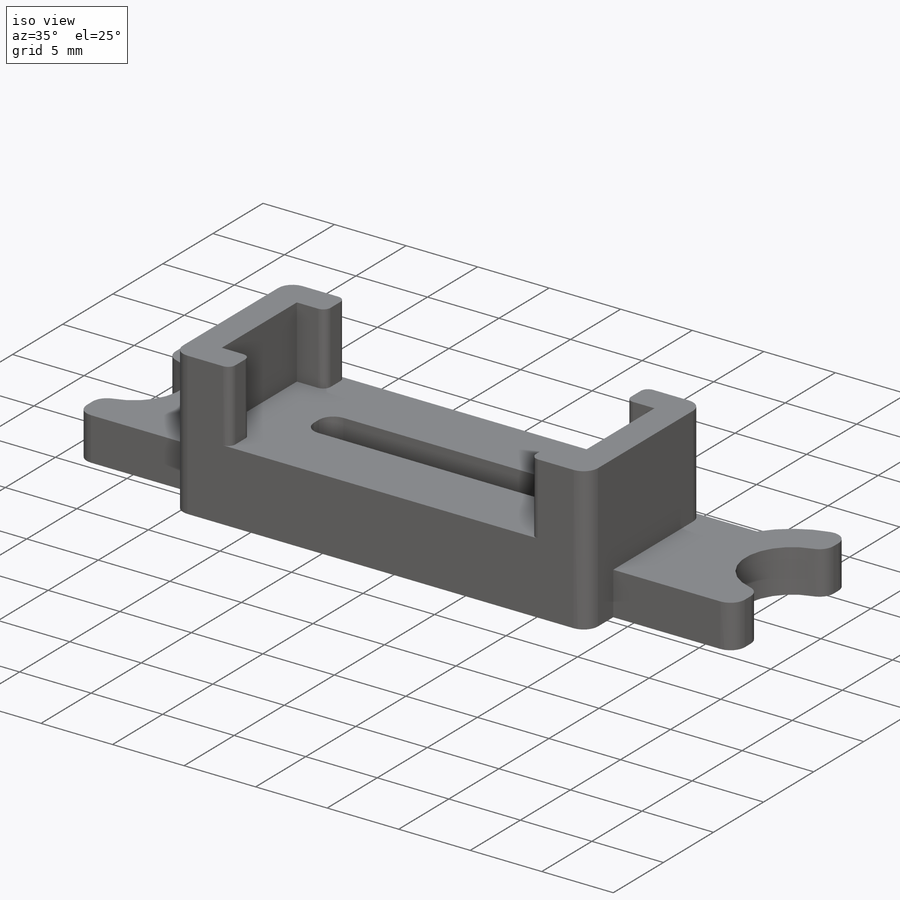
[diagram: iso view]
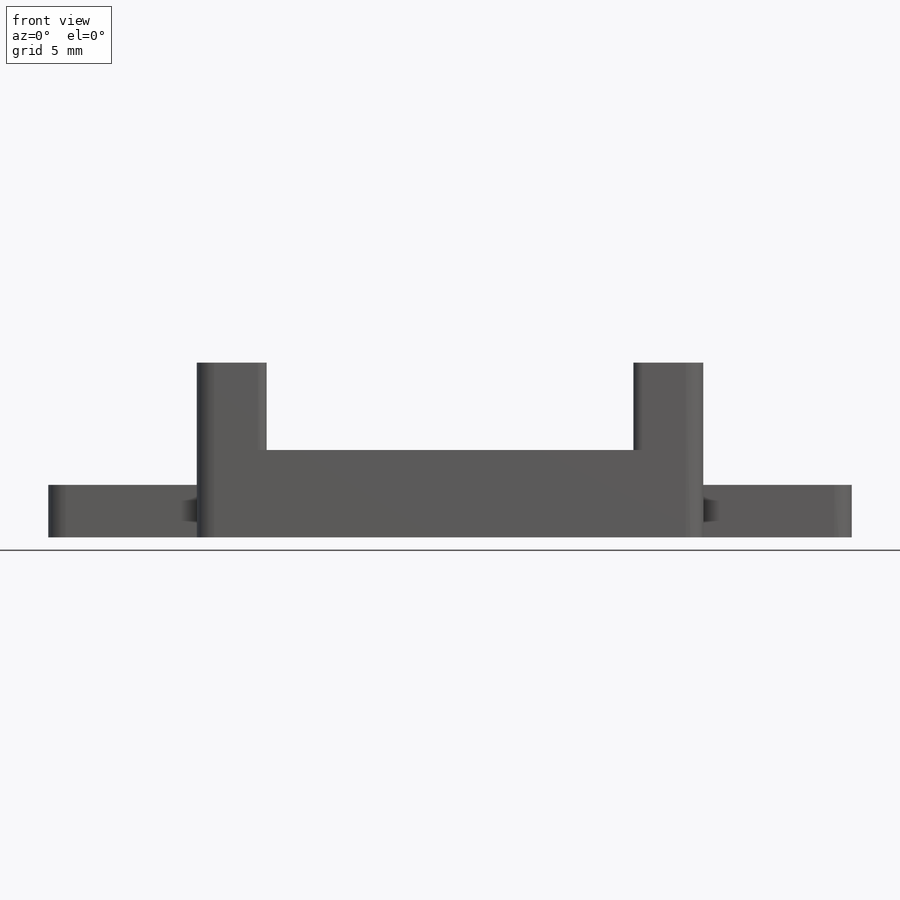
[diagram: front view]
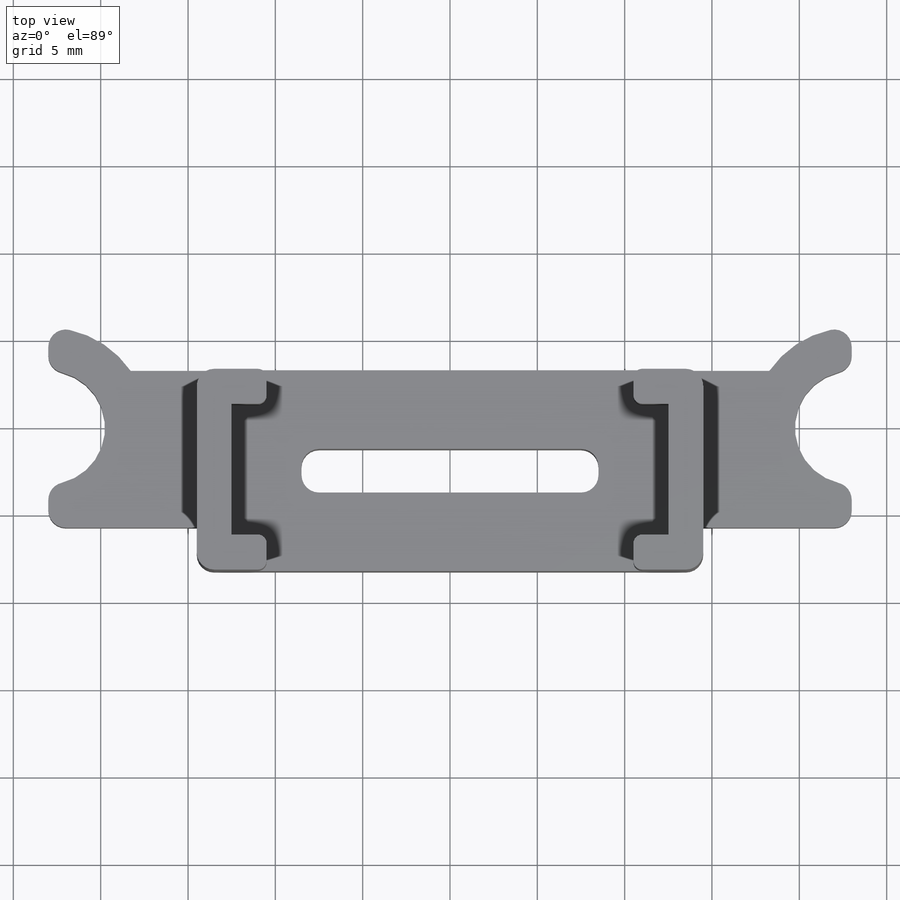
[diagram: top view]
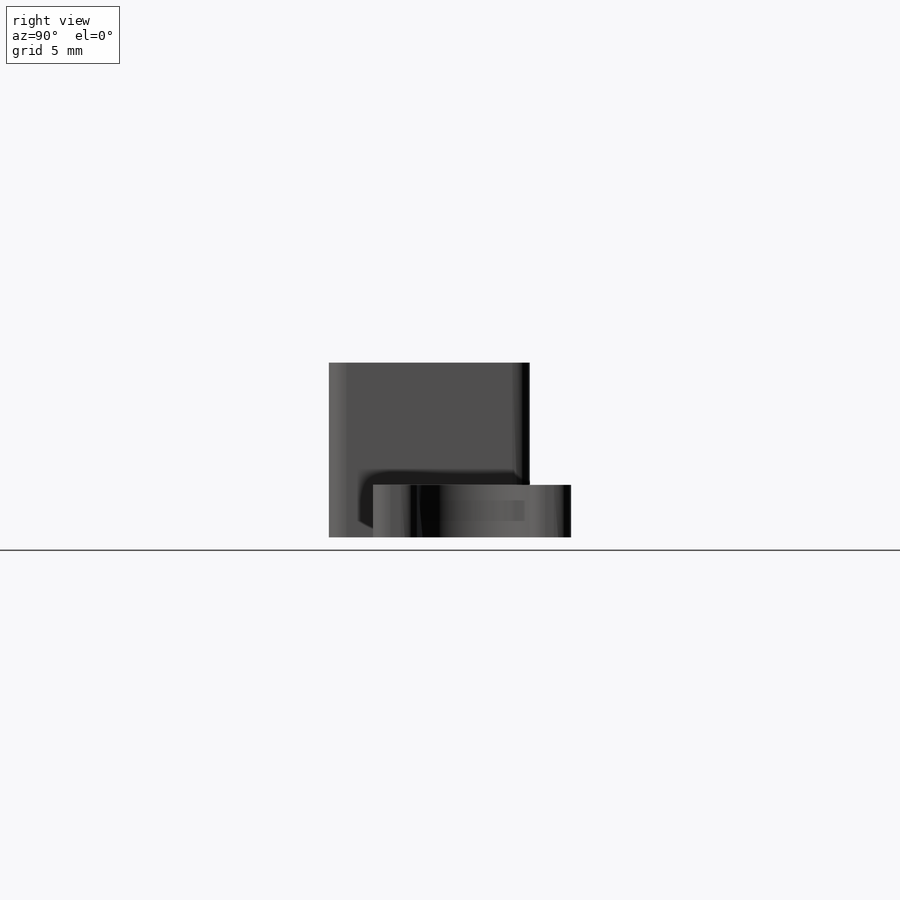
[diagram: right view]
SOLIDWORKS PART (.sldprt)
format: sldprt  version: not decoded by parser v0  size: 549,376 bytes
history: native  units: mm
features: sketch x4, extrude x2, fillet x2, material x1, hole x1 (+12 scaffold rows collapsed)
feature tree (22):
  scaffold x12  (default folders/planes/origin — collapsed)
  material  "ABS"
  sketch  "Sketch1"  dims[c1.D1=6.5mm c1.D2=46.0mm c1.D3=3.73mm c1.D4=3.175mm c2.D4=150.0deg c3.D4=2.0mm c3.D5=29.0mm c3.D6=14.5mm]
  extrude  "Main Body"  Depth=3mm
  sketch  "Sketch2"
  extrude  "Fan Offset"  Depth=5mm
  sketch  "Sketch3"  dims[c1.D1=2.0mm c1.D2=2.0mm c2.D1=5.0mm]
  sketch  "Sketch4"  dims[D1=4.0mm D2=2.5mm]
  hole  "Speed Hole"  [1 undecoded]
  fillet  "Contouring"  Radius=1mm
  fillet  "Fit Clearance - Contouring"  Radius=0.5mm
decode coverage: 7 of 9 modeling features carry decoded parameters
note: 1 parameter value undecoded
note: suppression state not decoded; provenance and decode notes live in map.json
